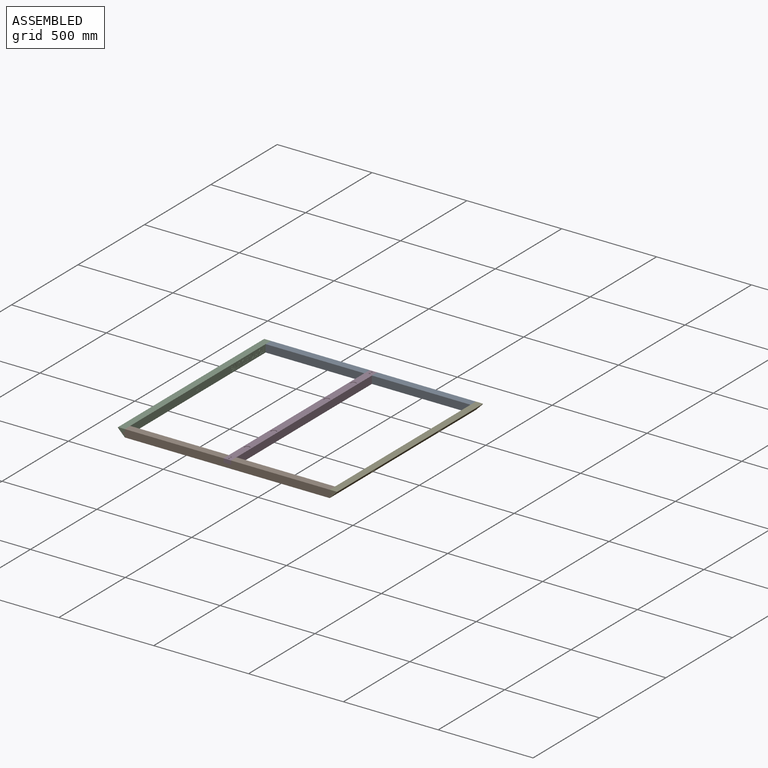
[diagram: assembled view]
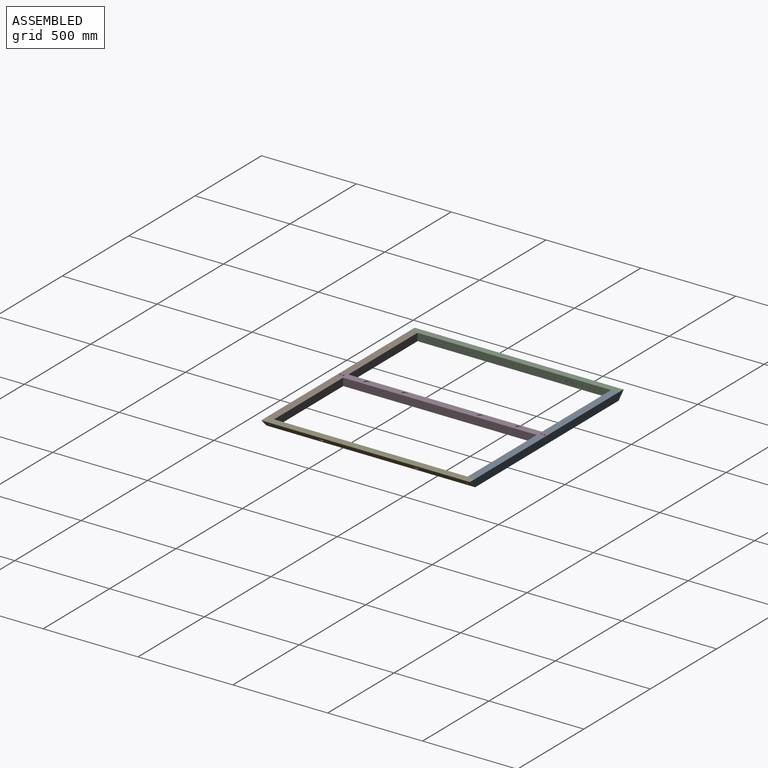
[diagram: assembled view, second angle]
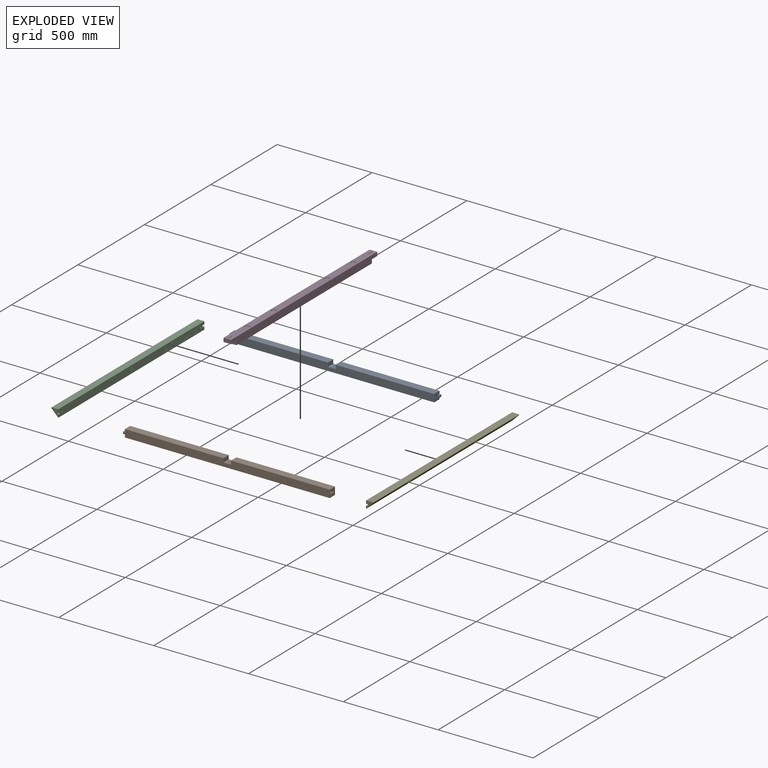
[diagram: exploded view]
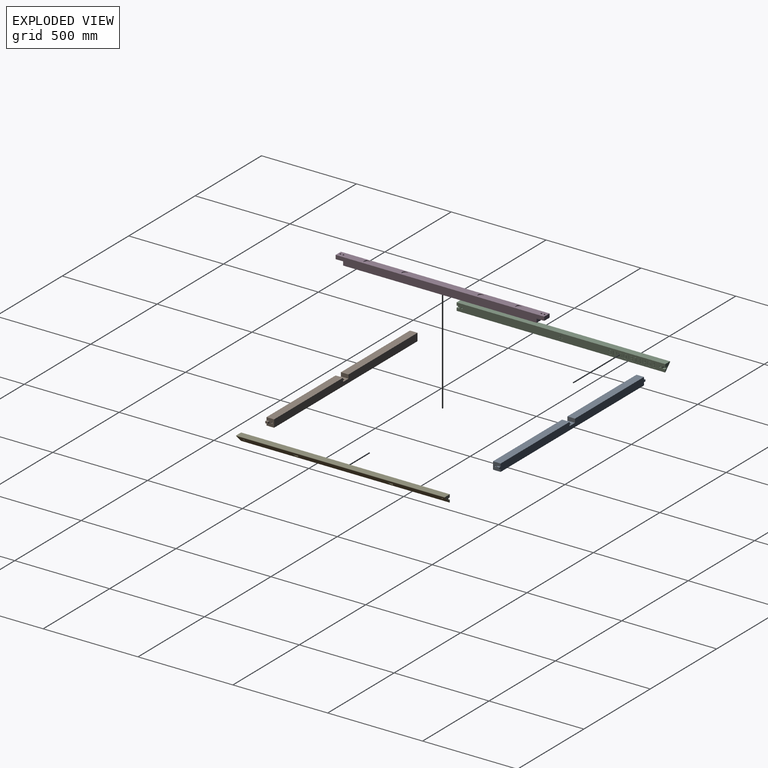
[diagram: exploded view, second angle]
ASSEMBLY  parts=5 mates=4
PART A: 24 faces, bbox 1100x40x40 mm
  f0: plane 520x40mm, normal (0,-1,0), area 20800mm2, adj f1,f2,f10,f20
  f1: plane 1100x40mm, normal (0,0,1), area 42600mm2, adj f0,f3,f4,f5,f6,f7,f8,f10
  f2: plane 1080x40mm, normal (0,0,-1), area 42400mm2, adj f0,f4,f5,f10,f16,f19,f20,f21
  f3: plane 15x10mm, normal (-1,0,0), area 150mm2, adj f1,f13,f14,f15
  f4: plane 1080x40mm, normal (0,1,0), area 43099.5mm2, adj f1,f2,f10,f16,f22,f23
  f5: plane 520x40mm, normal (0,-1,0), area 20800mm2, adj f1,f2,f16,f19
  f6: plane 15x10mm, normal (1,0,0), area 150mm2, adj f1,f7,f8,f9
  f7: plane 15x10mm, normal (0,-1,0), area 150mm2, adj f1,f6,f9,f10
  f8: plane 15x10mm, normal (0,1,0), area 150mm2, adj f1,f6,f9,f10
  f9: plane 10x10mm, normal (0,0,-1), area 100mm2, adj f6,f7,f8,f10
  f10: plane 40x40mm, normal (1,0,0), area 1399.7mm2, adj f0,f1,f2,f4,f7,f8,f9,f11
  f11: cylinder r=4mm len=25mm, axis (1,0,0), area 628.3mm2, adj f10,f12
  f12: plane 8x8mm, normal (1,0,0), area 50.3mm2, adj f11
  f13: plane 15x10mm, normal (0,-1,0), area 150mm2, adj f1,f3,f14,f16
  f14: plane 10x10mm, normal (0,0,-1), area 100mm2, adj f3,f13,f15,f16
  f15: plane 15x10mm, normal (0,1,0), area 150mm2, adj f1,f3,f14,f16
  f16: plane 40x40mm, normal (-1,0,0), area 1399.7mm2, adj f1,f2,f4,f5,f13,f14,f15,f17
  f17: cylinder r=4mm len=25mm, axis (-1,0,0), area 628.3mm2, adj f16,f18
  f18: plane 8x8mm, normal (-1,0,0), area 50.3mm2, adj f17
  f19: plane 40x20mm, normal (1,0,0), area 800mm2, adj f1,f2,f5,f21
  f20: plane 40x20mm, normal (-1,0,0), area 800mm2, adj f0,f1,f2,f21
  f21: plane 40x40mm, normal (0,-1,0), area 1499.5mm2, adj f1,f2,f19,f20,f22,f23
  f22: cylinder r=4mm len=20mm, axis (0,-1,0), area 502.7mm2, adj f4,f21
  f23: cylinder r=4mm len=20mm, axis (0,-1,0), area 502.7mm2, adj f4,f21
PART B: same geometry as A
PART C: 237 faces, bbox 41.7x38.9x1101.7 mm
  f0: plane 1100x40mm, normal (0,-1,0), area 40274.1mm2, adj f1,f2,f3,f4,f9,f10,f11,f13
  f1: plane 40x37.17mm, normal (0,0,1), area 695.1mm2, adj f0,f3,f4,f9,f11,f12,f236
  f2: plane 40x37.17mm, normal (0,0,-1), area 695.1mm2, adj f0,f3,f4,f14,f15,f17,f236
  f3: plane 1100x35.17mm, normal (-1,0,0), area 38688.7mm2, adj f0,f1,f2,f236
  f4: plane 1101.68x38.27mm, normal (0.71,0.71,0), area 55750.5mm2, adj f0,f1,f2,f5,f7,f13,f18,f236
  f5: cylinder r=12.75mm len=25.5mm, axis (0.71,0.71,0), area 560.8mm2, adj f4,f6
  f6: plane 25.5x18.03mm, normal (0.71,0.71,0), area 510.7mm2, adj f5
  f7: cylinder r=12.75mm len=25.5mm, axis (0.71,0.71,0), area 560.8mm2, adj f4,f8
  f8: plane 25.5x18.03mm, normal (0.71,0.71,0), area 510.7mm2, adj f7
  f9: plane 15x10mm, normal (1,0,0), area 150mm2, adj f0,f1,f10,f12
  f10: plane 10x10mm, normal (0,0,1), area 100mm2, adj f0,f9,f11,f12
  f11: plane 15x10mm, normal (-1,0,0), area 150mm2, adj f0,f1,f10,f12
  f12: plane 15x10mm, normal (0,-1,0), area 150mm2, adj f1,f9,f10,f11
  f13: cylinder r=4mm len=24.02mm, axis (0,-1,0), area 506.1mm2, adj f0,f4
  f14: plane 15x10mm, normal (1,0,0), area 150mm2, adj f0,f2,f16,f17
  f15: plane 15x10mm, normal (-1,0,0), area 150mm2, adj f0,f2,f16,f17
  f16: plane 10x10mm, normal (0,0,-1), area 100mm2, adj f0,f14,f15,f17
  f17: plane 15x10mm, normal (0,-1,0), area 150mm2, adj f2,f14,f15,f16
  f18: cylinder r=4mm len=24.02mm, axis (0,-1,0), area 506.1mm2, adj f0,f4
  f19: extruded ~6.26x1.58mm, area 9.8mm2, adj f20,f32,f33,f174
  f20: extruded ~6.26x1.59mm, area 9.9mm2, adj f19,f21,f33,f174
  f21: extruded ~4.73x2.11mm, area 8.1mm2, adj f20,f22,f33,f174
  f22: extruded ~8.37x6.26mm, area 17.9mm2, adj f21,f23,f33,f174
  f23: extruded ~8.36x6.29mm, area 17.9mm2, adj f22,f32,f33,f174
  f24: extruded ~9.46x3.05mm, area 15.3mm2, adj f0,f25,f31,f33
  f25: extruded ~9.46x3.03mm, area 15.3mm2, adj f0,f24,f26,f33
  f26: extruded ~8.74x3.29mm, area 14.4mm2, adj f0,f25,f27,f33
  f27: extruded ~8.77x3.26mm, area 14.5mm2, adj f0,f26,f28,f33
  f28: extruded ~9.45x3.06mm, area 15.3mm2, adj f0,f27,f29,f33
  f29: extruded ~9.5x3.05mm, area 15.3mm2, adj f0,f28,f30,f33
  f30: extruded ~8.75x3.31mm, area 14.5mm2, adj f0,f29,f31,f33
  f31: extruded ~8.75x3.31mm, area 14.5mm2, adj f0,f24,f30,f33
  f32: extruded ~4.71x2.1mm, area 8mm2, adj f19,f23,f33,f174
  f33: plane 25.52x23.6mm, normal (0,-1,0), area 321.8mm2, adj f19,f20,f21,f22,f23,f24,f25,f26
  f34: plane 1.5x1.17mm, normal (1,0,0), area 1.8mm2, adj f0,f44,f229,f235
  f35: plane 7.8x1.5mm, normal (0,0,1), area 11.7mm2, adj f0,f36,f44,f235
  f36: plane 6.41x1.5mm, normal (1,0,0), area 9.6mm2, adj f0,f35,f44,f234
  f37: plane 1.5x0.29mm, normal (0,0,1), area 0.4mm2, adj f0,f44,f233,f234
  f38: plane 6.41x1.5mm, normal (-1,0,0), area 9.6mm2, adj f0,f39,f44,f233
  f39: plane 6.39x1.5mm, normal (0,0,1), area 9.6mm2, adj f0,f38,f40,f44
  f40: plane 7.04x1.5mm, normal (1,0,0), area 10.6mm2, adj f0,f39,f44,f232
  f41: plane 1.5x0.31mm, normal (0,0,1), area 0.5mm2, adj f0,f44,f231,f232
  f42: plane 10.21x1.5mm, normal (-1,0,0), area 15.3mm2, adj f0,f44,f230,f231
  f43: plane 20.79x1.5mm, normal (0,0,-1), area 31.2mm2, adj f0,f44,f229,f230
  f44: plane 24.79x14.21mm, normal (0,-1,0), area 197.2mm2, adj f34,f35,f36,f37,f38,f39,f40,f41
  f45: plane 1.5x1.24mm, normal (1,0,0), area 1.9mm2, adj f0,f57,f221,f228
  f46: plane 20.79x1.5mm, normal (0,0,1), area 31.2mm2, adj f0,f57,f227,f228
  f47: plane 1.5x1.24mm, normal (-1,0,0), area 1.9mm2, adj f0,f57,f226,f227
  f48: plane 7.72x1.5mm, normal (0,0,-1), area 11.6mm2, adj f0,f49,f57,f226
  f49: plane 9.81x1.5mm, normal (-1,0,0), area 14.7mm2, adj f0,f48,f50,f57
  f50: plane 7.72x1.5mm, normal (0,0,1), area 11.6mm2, adj f0,f49,f57,f225
  f51: plane 1.5x1.26mm, normal (-1,0,0), area 1.9mm2, adj f0,f57,f224,f225
  f52: plane 20.79x1.5mm, normal (0,0,-1), area 31.2mm2, adj f0,f57,f223,f224
  f53: plane 1.5x1.26mm, normal (1,0,0), area 1.9mm2, adj f0,f57,f222,f223
  f54: plane 8.7x1.5mm, normal (0,0,1), area 13mm2, adj f0,f55,f57,f222
  f55: plane 9.81x1.5mm, normal (1,0,0), area 14.7mm2, adj f0,f54,f56,f57
  f56: plane 8.7x1.5mm, normal (0,0,-1), area 13mm2, adj f0,f55,f57,f221
  f57: plane 24.79x20.31mm, normal (0,-1,0), area 296.3mm2, adj f45,f46,f47,f48,f49,f50,f51,f52
  f58: plane 1.5x1.23mm, normal (1,0,0), area 1.8mm2, adj f0,f71,f213,f220
  f59: plane 10.75x6.78mm, normal (-0.53,0,0.85), area 19.1mm2, adj f0,f60,f71,f220
  f60: plane 7.73x6.1mm, normal (0.62,0,0.79), area 14.8mm2, adj f0,f59,f71,f219
  f61: plane 1.5x0.75mm, normal (-1,0,0), area 1.1mm2, adj f0,f71,f218,f219
  f62: plane 7.67x6.12mm, normal (-0.62,0,-0.78), area 14.7mm2, adj f0,f63,f71,f218
  f63: plane 2.92x2.07mm, normal (-0.58,0,-0.82), area 5.4mm2, adj f0,f62,f64,f71
  f64: plane 9.34x1.5mm, normal (0,0,1), area 14mm2, adj f0,f63,f71,f217
  f65: plane 1.5x1.26mm, normal (-1,0,0), area 1.9mm2, adj f0,f71,f216,f217
  f66: plane 20.79x1.5mm, normal (0,0,-1), area 31.2mm2, adj f0,f71,f215,f216
  f67: plane 1.5x1.26mm, normal (1,0,0), area 1.9mm2, adj f0,f71,f214,f215
  f68: plane 6.85x1.5mm, normal (0,0,1), area 10.3mm2, adj f0,f69,f71,f214
  f69: plane 2.22x1.6mm, normal (0.81,0,0.58), area 4.1mm2, adj f0,f68,f70,f71
  f70: plane 9.5x5.91mm, normal (0.53,0,-0.85), area 16.8mm2, adj f0,f69,f71,f213
  f71: plane 24.79x18.31mm, normal (0,-1,0), area 271.3mm2, adj f58,f59,f60,f61,f62,f63,f64,f65
  f72: plane 20.79x1.5mm, normal (0,0,-1), area 31.2mm2, adj f0,f78,f208,f212
  f73: plane 11.31x1.5mm, normal (1,0,0), area 17mm2, adj f0,f78,f211,f212
  f74: plane 1.5x0.34mm, normal (0,0,1), area 0.5mm2, adj f0,f78,f210,f211
  f75: plane 8.05x1.5mm, normal (-1,0,0), area 12.1mm2, adj f0,f76,f78,f210
  f76: plane 18.45x1.5mm, normal (0,0,1), area 27.7mm2, adj f0,f75,f78,f209
  f77: plane 1.5x1.26mm, normal (-1,0,0), area 1.9mm2, adj f0,f78,f208,f209
  f78: plane 24.79x15.31mm, normal (0,-1,0), area 169.7mm2, adj f72,f73,f74,f75,f76,f77,f208,f209
  f79: extruded ~7.99x7.05mm, area 18.3mm2, adj f80,f90,f91,f175
  f80: extruded ~8.15x7.6mm, area 19.2mm2, adj f79,f81,f91,f175
  f81: plane 2.25x1.5mm, normal (-1,0,0), area 3.4mm2, adj f80,f82,f91,f175
  f82: plane 16.14x1.5mm, normal (0,0,1), area 24.2mm2, adj f81,f90,f91,f175
  f83: extruded ~9.38x3.49mm, area 15.5mm2, adj f0,f84,f89,f91
  f84: extruded ~8.95x3.36mm, area 14.8mm2, adj f0,f83,f85,f91
  f85: extruded ~9.43x3.2mm, area 15.3mm2, adj f0,f84,f86,f91
  f86: plane 5.78x1.5mm, normal (-1,0,0), area 8.7mm2, adj f0,f85,f91,f207
  f87: plane 20.79x1.5mm, normal (0,0,-1), area 31.2mm2, adj f0,f91,f206,f207
  f88: plane 5.02x1.5mm, normal (1,0,0), area 7.5mm2, adj f0,f89,f91,f206
  f89: extruded ~10.06x3.26mm, area 16.2mm2, adj f0,f83,f88,f91
  f90: plane 2.79x1.5mm, normal (1,0,0), area 4.2mm2, adj f79,f82,f91,f175
  f91: plane 24.79x20.57mm, normal (0,-1,0), area 311.1mm2, adj f79,f80,f81,f82,f83,f84,f85,f86
  f92: plane 3.52x1.5mm, normal (1,0,0), area 5.3mm2, adj f0,f106,f198,f205
  f93: plane 20.79x1.5mm, normal (0,0,1), area 31.2mm2, adj f0,f106,f204,f205
  f94: plane 1.5x0.73mm, normal (-1,0,0), area 1.1mm2, adj f0,f106,f203,f204
  f95: plane 9.74x1.5mm, normal (0,0,-1), area 14.6mm2, adj f0,f96,f106,f203
  f96: extruded ~6.83x1.5mm, area 10.3mm2, adj f0,f95,f97,f106
  f97: plane 1.5x0.12mm, normal (-1,0,0), area 0.2mm2, adj f0,f96,f98,f106
  f98: plane 17.57x10.19mm, normal (-0.5,0,0.87), area 30.5mm2, adj f0,f97,f106,f202
  f99: plane 3.48x1.5mm, normal (-1,0,0), area 5.2mm2, adj f0,f106,f201,f202
  f100: plane 20.79x1.5mm, normal (0,0,-1), area 31.2mm2, adj f0,f106,f200,f201
  f101: plane 1.5x0.7mm, normal (1,0,0), area 1mm2, adj f0,f106,f199,f200
  f102: plane 9.66x1.5mm, normal (0,0,1), area 14.5mm2, adj f0,f103,f106,f199
  f103: extruded ~7.09x1.5mm, area 10.6mm2, adj f0,f102,f104,f106
  f104: plane 1.5x0.15mm, normal (1,0,0), area 0.2mm2, adj f0,f103,f105,f106
  f105: plane 17.75x10.21mm, normal (0.5,0,-0.87), area 30.7mm2, adj f0,f104,f106,f198
  f106: plane 24.79x21.99mm, normal (0,-1,0), area 342.6mm2, adj f92,f93,f94,f95,f96,f97,f98,f99
  f107: plane 5.84x1.5mm, normal (-1,0,0), area 8.8mm2, adj f0,f126,f192,f197
  f108: plane 1.5x0.38mm, normal (0,0,-1), area 0.6mm2, adj f0,f126,f196,f197
  f109: plane 2.7x1.5mm, normal (1,0,0), area 4mm2, adj f0,f110,f126,f196
  f110: plane 5.17x1.5mm, normal (0,0,-1), area 7.8mm2, adj f0,f109,f111,f126
  f111: extruded ~3.34x1.5mm, area 5mm2, adj f0,f110,f112,f126
  f112: extruded ~4.8x2.13mm, area 8.2mm2, adj f0,f111,f113,f126
  f113: extruded ~6.16x1.65mm, area 9.7mm2, adj f0,f112,f114,f126
  f114: extruded ~6.15x2.05mm, area 10mm2, adj f0,f113,f115,f126
  f115: extruded ~5.46x2.29mm, area 9.2mm2, adj f0,f114,f116,f126
  f116: extruded ~3.93x1.5mm, area 6mm2, adj f0,f115,f126,f195
  f117: plane 1.5x0.43mm, normal (0.38,0,0.92), area 0.7mm2, adj f0,f126,f194,f195
  f118: extruded ~5.29x1.5mm, area 8mm2, adj f0,f119,f126,f194
  f119: extruded ~9.52x3.36mm, area 15.5mm2, adj f0,f118,f120,f126
  f120: extruded ~9.36x3.43mm, area 15.4mm2, adj f0,f119,f121,f126
  f121: extruded ~9.47x2.96mm, area 15.2mm2, adj f0,f120,f122,f126
  f122: extruded ~8.57x3.3mm, area 14.2mm2, adj f0,f121,f123,f126
  f123: extruded ~4.31x1.5mm, area 6.5mm2, adj f0,f122,f124,f126
  f124: extruded ~3.03x1.5mm, area 4.7mm2, adj f0,f123,f126,f193
  f125: plane 9.37x1.5mm, normal (0,0,1), area 14.1mm2, adj f0,f126,f192,f193
  f126: plane 25.48x20.35mm, normal (0,-1,0), area 294.6mm2, adj f107,f108,f109,f110,f111,f112,f113,f114
  f127: plane 10.27x1.5mm, normal (1,0,0), area 15.4mm2, adj f0,f139,f184,f191
  f128: plane 1.5x0.34mm, normal (0,0,1), area 0.5mm2, adj f0,f139,f190,f191
  f129: plane 7.02x1.5mm, normal (-1,0,0), area 10.5mm2, adj f0,f130,f139,f190
  f130: plane 6.39x1.5mm, normal (0,0,1), area 9.6mm2, adj f0,f129,f131,f139
  f131: plane 6.39x1.5mm, normal (1,0,0), area 9.6mm2, adj f0,f130,f139,f189
  f132: plane 1.5x0.31mm, normal (0,0,1), area 0.5mm2, adj f0,f139,f188,f189
  f133: plane 6.39x1.5mm, normal (-1,0,0), area 9.6mm2, adj f0,f134,f139,f188
  f134: plane 5.44x1.5mm, normal (0,0,1), area 8.2mm2, adj f0,f133,f135,f139
  f135: plane 7.02x1.5mm, normal (1,0,0), area 10.5mm2, adj f0,f134,f139,f187
  f136: plane 1.5x0.31mm, normal (0,0,1), area 0.5mm2, adj f0,f139,f186,f187
  f137: plane 10.27x1.5mm, normal (-1,0,0), area 15.4mm2, adj f0,f139,f185,f186
  f138: plane 20.79x1.5mm, normal (0,0,-1), area 31.2mm2, adj f0,f139,f184,f185
  f139: plane 24.79x14.27mm, normal (0,-1,0), area 237.6mm2, adj f127,f128,f129,f130,f131,f132,f133,f134
  f140: plane 20.79x1.5mm, normal (0,0,-1), area 31.2mm2, adj f0,f144,f180,f183
  f141: plane 1.5x1.26mm, normal (1,0,0), area 1.9mm2, adj f0,f144,f182,f183
  f142: plane 20.79x1.5mm, normal (0,0,1), area 31.2mm2, adj f0,f144,f181,f182
  f143: plane 1.5x1.26mm, normal (-1,0,0), area 1.9mm2, adj f0,f144,f180,f181
  f144: plane 24.79x5.26mm, normal (0,-1,0), area 126.9mm2, adj f140,f141,f142,f143,f180,f181,f182,f183
  f145: plane 14.04x1.5mm, normal (0,0,1), area 21.1mm2, adj f0,f159,f160,f179
  f146: plane 1.5x1.24mm, normal (-1,0,0), area 1.9mm2, adj f0,f160,f178,f179
  f147: plane 13.14x1.5mm, normal (0,0,-1), area 19.7mm2, adj f0,f148,f160,f178
  f148: extruded ~4.23x1.5mm, area 6.7mm2, adj f0,f147,f149,f160
  f149: extruded ~3.74x1.5mm, area 6.2mm2, adj f0,f148,f150,f160
  f150: extruded ~3.82x1.5mm, area 6.3mm2, adj f0,f149,f151,f160
  f151: extruded ~4.2x1.5mm, area 6.7mm2, adj f0,f150,f152,f160
  f152: plane 13.17x1.5mm, normal (0,0,1), area 19.8mm2, adj f0,f151,f160,f177
  f153: plane 1.5x1.24mm, normal (-1,0,0), area 1.9mm2, adj f0,f160,f176,f177
  f154: plane 13.97x1.5mm, normal (0,0,-1), area 21mm2, adj f0,f155,f160,f176
  f155: extruded ~6.71x2.65mm, area 11.1mm2, adj f0,f154,f156,f160
  f156: extruded ~7.42x2.45mm, area 12mm2, adj f0,f155,f157,f160
  f157: extruded ~5.49x1.5mm, area 8.5mm2, adj f0,f156,f158,f160
  f158: extruded ~3.55x3.17mm, area 7.3mm2, adj f0,f157,f159,f160
  f159: extruded ~4.82x1.5mm, area 7.6mm2, adj f0,f145,f158,f160
  f160: plane 25.13x20.35mm, normal (0,-1,0), area 277.7mm2, adj f145,f146,f147,f148,f149,f150,f151,f152
  f161: plane 7.97x1.5mm, normal (0,0,1), area 12mm2, adj f0,f162,f172,f173
  f162: plane 7.94x1.5mm, normal (1,0,0), area 11.9mm2, adj f0,f161,f163,f173
  f163: plane 4.52x1.5mm, normal (0,0,1), area 6.8mm2, adj f0,f162,f164,f173
  f164: plane 7.94x1.5mm, normal (-1,0,0), area 11.9mm2, adj f0,f163,f165,f173
  f165: plane 7.97x1.5mm, normal (0,0,1), area 12mm2, adj f0,f164,f166,f173
  f166: plane 4.51x1.5mm, normal (-1,0,0), area 6.8mm2, adj f0,f165,f167,f173
  f167: plane 7.97x1.5mm, normal (0,0,-1), area 12mm2, adj f0,f166,f168,f173
  f168: plane 8.03x1.5mm, normal (-1,0,0), area 12.1mm2, adj f0,f167,f169,f173
  f169: plane 4.52x1.5mm, normal (0,0,-1), area 6.8mm2, adj f0,f168,f170,f173
  f170: plane 8.03x1.5mm, normal (1,0,0), area 12.1mm2, adj f0,f169,f171,f173
  f171: plane 7.97x1.5mm, normal (0,0,-1), area 12mm2, adj f0,f170,f172,f173
  f172: plane 4.51x1.5mm, normal (1,0,0), area 6.8mm2, adj f0,f161,f171,f173
  f173: plane 20.48x20.45mm, normal (0,-1,0), area 164.3mm2, adj f161,f162,f163,f164,f165,f166,f167,f168
  f174: plane 16.73x12.58mm, normal (0,-1,0), area 175.2mm2, adj f19,f20,f21,f22,f23,f32
  f175: plane 16.14x9.85mm, normal (0,-1,0), area 139.2mm2, adj f79,f80,f81,f82,f90
  f176: cylinder r=2mm len=2mm, axis (0,1,0), area 4.7mm2, adj f0,f153,f154,f160
  f177: cylinder r=2mm len=2mm, axis (0,1,0), area 4.7mm2, adj f0,f152,f153,f160
  f178: cylinder r=2mm len=2mm, axis (0,1,0), area 4.7mm2, adj f0,f146,f147,f160
  f179: cylinder r=2mm len=2mm, axis (0,1,0), area 4.7mm2, adj f0,f145,f146,f160
  f180: cylinder r=2mm len=2mm, axis (0,1,0), area 4.7mm2, adj f0,f140,f143,f144
  f181: cylinder r=2mm len=2mm, axis (0,1,0), area 4.7mm2, adj f0,f142,f143,f144
  f182: cylinder r=2mm len=2mm, axis (0,1,0), area 4.7mm2, adj f0,f141,f142,f144
  f183: cylinder r=2mm len=2mm, axis (0,1,0), area 4.7mm2, adj f0,f140,f141,f144
  f184: cylinder r=2mm len=2mm, axis (0,1,0), area 4.7mm2, adj f0,f127,f138,f139
  f185: cylinder r=2mm len=2mm, axis (0,1,0), area 4.7mm2, adj f0,f137,f138,f139
  f186: cylinder r=2mm len=2mm, axis (0,1,0), area 4.7mm2, adj f0,f136,f137,f139
  f187: cylinder r=2mm len=2mm, axis (0,1,0), area 4.7mm2, adj f0,f135,f136,f139
  f188: cylinder r=2mm len=2mm, axis (0,1,0), area 4.7mm2, adj f0,f132,f133,f139
  f189: cylinder r=2mm len=2mm, axis (0,1,0), area 4.7mm2, adj f0,f131,f132,f139
  f190: cylinder r=2mm len=2mm, axis (0,1,0), area 4.7mm2, adj f0,f128,f129,f139
  f191: cylinder r=2mm len=2mm, axis (0,1,0), area 4.7mm2, adj f0,f127,f128,f139
  f192: cylinder r=2mm len=2mm, axis (0,1,0), area 4.7mm2, adj f0,f107,f125,f126
  f193: cylinder r=2mm len=1.93mm, axis (0,-1,0), area 3.9mm2, adj f0,f124,f125,f126
  f194: cylinder r=2mm len=2.68mm, axis (0,-1,0), area 5mm2, adj f0,f117,f118,f126
  f195: cylinder r=2mm len=2.48mm, axis (0,-1,0), area 4.5mm2, adj f0,f116,f117,f126
  f196: cylinder r=2mm len=2mm, axis (0,1,0), area 4.7mm2, adj f0,f108,f109,f126
  f197: cylinder r=2mm len=2mm, axis (0,1,0), area 4.7mm2, adj f0,f107,f108,f126
  f198: cylinder r=2mm len=1.73mm, axis (0,1,0), area 3.1mm2, adj f0,f92,f105,f106
  f199: cylinder r=2mm len=2mm, axis (0,1,0), area 4.7mm2, adj f0,f101,f102,f106
  f200: cylinder r=2mm len=2mm, axis (0,1,0), area 4.7mm2, adj f0,f100,f101,f106
  f201: cylinder r=2mm len=2mm, axis (0,1,0), area 4.7mm2, adj f0,f99,f100,f106
  f202: cylinder r=2mm len=1.73mm, axis (0,1,0), area 3.1mm2, adj f0,f98,f99,f106
  f203: cylinder r=2mm len=2mm, axis (0,1,0), area 4.7mm2, adj f0,f94,f95,f106
  f204: cylinder r=2mm len=2mm, axis (0,1,0), area 4.7mm2, adj f0,f93,f94,f106
  f205: cylinder r=2mm len=2mm, axis (0,1,0), area 4.7mm2, adj f0,f92,f93,f106
  f206: cylinder r=2mm len=2mm, axis (0,1,0), area 4.7mm2, adj f0,f87,f88,f91
  f207: cylinder r=2mm len=2mm, axis (0,1,0), area 4.7mm2, adj f0,f86,f87,f91
  f208: cylinder r=2mm len=2mm, axis (0,1,0), area 4.7mm2, adj f0,f72,f77,f78
  f209: cylinder r=2mm len=2mm, axis (0,1,0), area 4.7mm2, adj f0,f76,f77,f78
  f210: cylinder r=2mm len=2mm, axis (0,1,0), area 4.7mm2, adj f0,f74,f75,f78
  f211: cylinder r=2mm len=2mm, axis (0,1,0), area 4.7mm2, adj f0,f73,f74,f78
  f212: cylinder r=2mm len=2mm, axis (0,1,0), area 4.7mm2, adj f0,f72,f73,f78
  f213: cylinder r=2mm len=1.7mm, axis (0,1,0), area 3mm2, adj f0,f58,f70,f71
  f214: cylinder r=2mm len=2mm, axis (0,1,0), area 4.7mm2, adj f0,f67,f68,f71
  f215: cylinder r=2mm len=2mm, axis (0,1,0), area 4.7mm2, adj f0,f66,f67,f71
  f216: cylinder r=2mm len=2mm, axis (0,1,0), area 4.7mm2, adj f0,f65,f66,f71
  f217: cylinder r=2mm len=2mm, axis (0,1,0), area 4.7mm2, adj f0,f64,f65,f71
  f218: cylinder r=2mm len=1.56mm, axis (0,1,0), area 2.7mm2, adj f0,f61,f62,f71
  f219: cylinder r=2mm len=3.24mm, axis (0,1,0), area 6.7mm2, adj f0,f60,f61,f71
  f220: cylinder r=2mm len=3.07mm, axis (0,1,0), area 6.4mm2, adj f0,f58,f59,f71
  f221: cylinder r=2mm len=2mm, axis (0,1,0), area 4.7mm2, adj f0,f45,f56,f57
  f222: cylinder r=2mm len=2mm, axis (0,1,0), area 4.7mm2, adj f0,f53,f54,f57
  f223: cylinder r=2mm len=2mm, axis (0,1,0), area 4.7mm2, adj f0,f52,f53,f57
  f224: cylinder r=2mm len=2mm, axis (0,1,0), area 4.7mm2, adj f0,f51,f52,f57
  f225: cylinder r=2mm len=2mm, axis (0,1,0), area 4.7mm2, adj f0,f50,f51,f57
  f226: cylinder r=2mm len=2mm, axis (0,1,0), area 4.7mm2, adj f0,f47,f48,f57
  f227: cylinder r=2mm len=2mm, axis (0,1,0), area 4.7mm2, adj f0,f46,f47,f57
  f228: cylinder r=2mm len=2mm, axis (0,1,0), area 4.7mm2, adj f0,f45,f46,f57
  f229: cylinder r=2mm len=2mm, axis (0,1,0), area 4.7mm2, adj f0,f34,f43,f44
  f230: cylinder r=2mm len=2mm, axis (0,1,0), area 4.7mm2, adj f0,f42,f43,f44
  f231: cylinder r=2mm len=2mm, axis (0,1,0), area 4.7mm2, adj f0,f41,f42,f44
  f232: cylinder r=2mm len=2mm, axis (0,1,0), area 4.7mm2, adj f0,f40,f41,f44
  f233: cylinder r=2mm len=2mm, axis (0,1,0), area 4.7mm2, adj f0,f37,f38,f44
  f234: cylinder r=2mm len=2mm, axis (0,1,0), area 4.7mm2, adj f0,f36,f37,f44
  f235: cylinder r=2mm len=2mm, axis (0,1,0), area 4.7mm2, adj f0,f34,f35,f44
  f236: cylinder r=2mm len=1100mm, axis (0,0,-1), area 5183.6mm2, adj f1,f2,f3,f4
PART D: 30 faces, bbox 40x40x1100 mm
  f0: plane 1100x40mm, normal (0,1,0), area 41423.1mm2, adj f2,f3,f4,f7,f8,f9,f12,f13
  f1: plane 1020x40mm, normal (0,-1,0), area 38424.2mm2, adj f2,f4,f5,f10,f14,f16,f18,f20
  f2: plane 1100x40mm, normal (1,0,0), area 42400mm2, adj f0,f1,f3,f5,f6,f9,f10,f11
  f3: plane 40x20mm, normal (0,0,1), area 800mm2, adj f0,f2,f4,f6
  f4: plane 1100x40mm, normal (-1,0,0), area 42400mm2, adj f0,f1,f3,f5,f6,f9,f10,f11
  f5: plane 40x20mm, normal (0,0,1), area 800mm2, adj f1,f2,f4,f6
  f6: plane 40x40mm, normal (0,-1,0), area 1499.5mm2, adj f2,f3,f4,f5,f7,f8
  f7: cylinder r=4mm len=20mm, axis (0,-1,0), area 502.7mm2, adj f0,f6
  f8: cylinder r=4mm len=20mm, axis (0,-1,0), area 502.7mm2, adj f0,f6
  f9: plane 40x20mm, normal (0,0,-1), area 800mm2, adj f0,f2,f4,f11
  f10: plane 40x20mm, normal (0,0,-1), area 800mm2, adj f1,f2,f4,f11
  f11: plane 40x40mm, normal (0,-1,0), area 1499.5mm2, adj f2,f4,f9,f10,f12,f13
  f12: cylinder r=4mm len=20mm, axis (0,-1,0), area 502.7mm2, adj f0,f11
  f13: cylinder r=4mm len=20mm, axis (0,-1,0), area 502.7mm2, adj f0,f11
  f14: cylinder r=13.75mm len=27.5mm, axis (0,-1,0), area 259.2mm2, adj f1,f15
  f15: plane 27.5x27.5mm, normal (0,-1,0), area 594mm2, adj f14
  f16: cylinder r=13.75mm len=27.5mm, axis (0,-1,0), area 259.2mm2, adj f1,f17
  f17: plane 27.5x27.5mm, normal (0,-1,0), area 594mm2, adj f16
  f18: cylinder r=13.75mm len=27.5mm, axis (0,-1,0), area 259.2mm2, adj f1,f19
  f19: plane 27.5x27.5mm, normal (0,-1,0), area 594mm2, adj f18
  f20: cylinder r=13.75mm len=27.5mm, axis (0,-1,0), area 259.2mm2, adj f1,f21
  f21: plane 27.5x27.5mm, normal (0,-1,0), area 594mm2, adj f20
  f22: cylinder r=13.75mm len=27.5mm, axis (0,1,0), area 259.2mm2, adj f0,f23
  f23: plane 27.5x27.5mm, normal (0,1,0), area 594mm2, adj f22
  f24: cylinder r=13.75mm len=27.5mm, axis (0,1,0), area 259.2mm2, adj f0,f25
  f25: plane 27.5x27.5mm, normal (0,1,0), area 594mm2, adj f24
  f26: cylinder r=13.75mm len=27.5mm, axis (0,1,0), area 259.2mm2, adj f0,f27
  f27: plane 27.5x27.5mm, normal (0,1,0), area 594mm2, adj f26
  f28: cylinder r=13.75mm len=27.5mm, axis (0,1,0), area 259.2mm2, adj f0,f29
  f29: plane 27.5x27.5mm, normal (0,1,0), area 594mm2, adj f28
PART E: 29 faces, bbox 41.7x38.9x1101.7 mm
  f0: plane 1100x40mm, normal (0,-1,0), area 43444.4mm2, adj f1,f2,f3,f4,f9,f10,f11,f13
  f1: plane 40x37.17mm, normal (0,0,1), area 695.1mm2, adj f0,f3,f4,f9,f11,f12,f28
  f2: plane 40x37.17mm, normal (0,0,-1), area 695.1mm2, adj f0,f3,f4,f14,f15,f17,f28
  f3: plane 1100x35.17mm, normal (-1,0,0), area 38688.7mm2, adj f0,f1,f2,f28
  f4: plane 1101.68x38.27mm, normal (0.71,0.71,0), area 55584mm2, adj f0,f1,f2,f5,f7,f13,f18,f28
  f5: cylinder r=13.75mm len=27.5mm, axis (0.71,0.71,0), area 259.2mm2, adj f4,f6
  f6: plane 27.5x19.45mm, normal (0.71,0.71,0), area 594mm2, adj f5
  f7: cylinder r=13.75mm len=27.5mm, axis (0.71,0.71,0), area 259.2mm2, adj f4,f8
  f8: plane 27.5x19.45mm, normal (0.71,0.71,0), area 594mm2, adj f7
  f9: plane 15x10mm, normal (1,0,0), area 150mm2, adj f0,f1,f10,f12
  f10: plane 10x10mm, normal (0,0,1), area 100mm2, adj f0,f9,f11,f12
  f11: plane 15x10mm, normal (-1,0,0), area 150mm2, adj f0,f1,f10,f12
  f12: plane 15x10mm, normal (0,-1,0), area 150mm2, adj f1,f9,f10,f11
  f13: cylinder r=4mm len=24.02mm, axis (0,-1,0), area 506.1mm2, adj f0,f4
  f14: plane 15x10mm, normal (1,0,0), area 150mm2, adj f0,f2,f16,f17
  f15: plane 15x10mm, normal (-1,0,0), area 150mm2, adj f0,f2,f16,f17
  f16: plane 10x10mm, normal (0,0,-1), area 100mm2, adj f0,f14,f15,f17
  f17: plane 15x10mm, normal (0,-1,0), area 150mm2, adj f2,f14,f15,f16
  f18: cylinder r=4mm len=24.02mm, axis (0,-1,0), area 506.1mm2, adj f0,f4
  f19: plane 5.55x1.5mm, normal (1,0,0), area 8.3mm2, adj f0,f23,f24,f27
  f20: plane 15.37x1.5mm, normal (0,0,1), area 23.1mm2, adj f0,f23,f24,f25
  f21: plane 5.55x1.5mm, normal (-1,0,0), area 8.3mm2, adj f0,f23,f25,f26
  f22: plane 15.37x1.5mm, normal (0,0,-1), area 23.1mm2, adj f0,f23,f26,f27
  f23: plane 18.37x8.55mm, normal (0,-1,0), area 155.1mm2, adj f19,f20,f21,f22,f24,f25,f26,f27
  f24: cylinder r=1.5mm len=1.5mm, axis (0,1,0), area 3.5mm2, adj f0,f19,f20,f23
  f25: cylinder r=1.5mm len=1.5mm, axis (0,1,0), area 3.5mm2, adj f0,f20,f21,f23
  f26: cylinder r=1.5mm len=1.5mm, axis (0,1,0), area 3.5mm2, adj f0,f21,f22,f23
  f27: cylinder r=1.5mm len=1.5mm, axis (0,1,0), area 3.5mm2, adj f0,f19,f22,f23
  f28: cylinder r=2mm len=1100mm, axis (0,0,-1), area 5183.6mm2, adj f1,f2,f3,f4
PLACE A rot(axis=(-1,0,0),90deg) t=(-1302.23,188.52,424.42)mm
PLACE B rot(axis=(0,-0.71,0.71),180deg) t=(-202.23,-831.48,424.42)mm
PLACE C rot(axis=(-0.58,0.58,0.58),120deg) t=(-1292.23,-871.48,464.42)mm
PLACE D rot(axis=(0,0.71,0.71),180deg) t=(-732.23,-321.48,424.42)mm
PLACE E rot(axis=(0.58,0.58,-0.58),120deg) t=(-212.23,228.52,464.42)mm
MATE fastened B.f3 <-> E.f12  axis (1,0,0) through (-202.23,-863.98,444.42)mm
MATE fastened A.f6 <-> E.f17  axis (1,0,0) through (-202.23,221.02,444.42)mm
MATE fastened D.f11 <-> B.f21  axis (0,0,-1) through (-752.23,-851.48,444.42)mm
MATE fastened A.f3 <-> C.f12  axis (-1,0,0) through (-1302.23,221.02,444.42)mm
